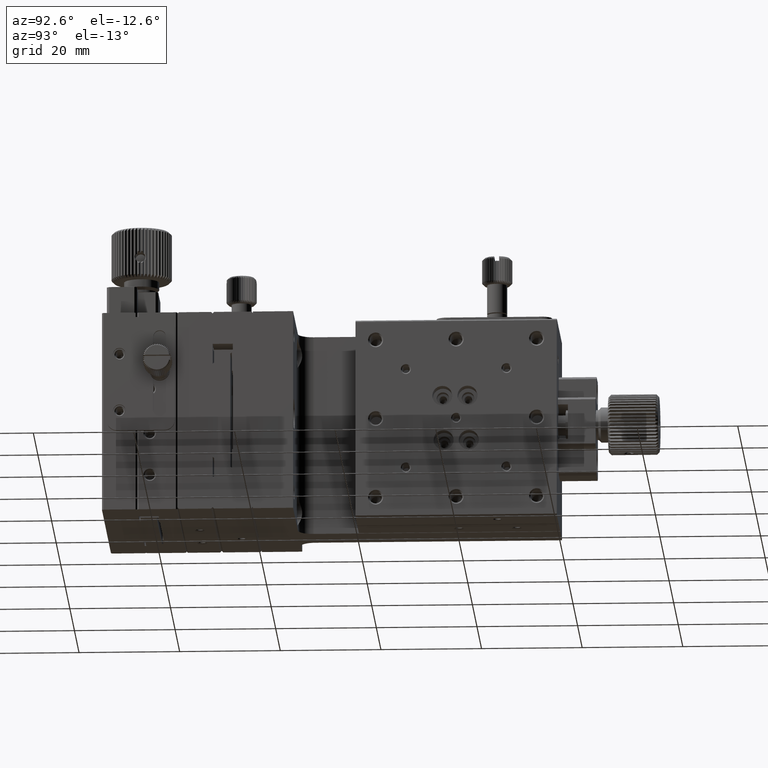
[diagram: clean part render]
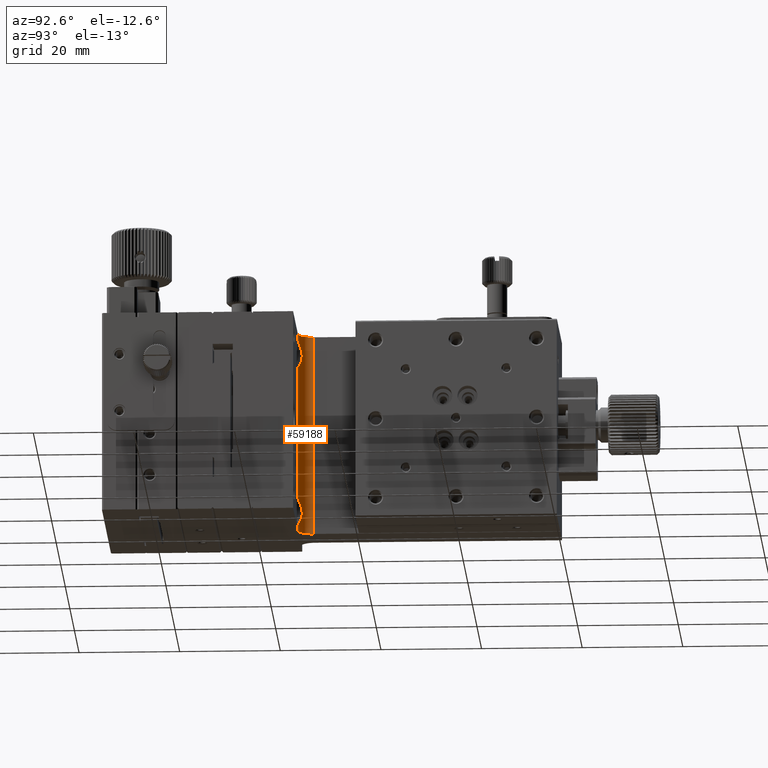
[diagram: same view with one face highlighted and labeled with its STEP entity id]
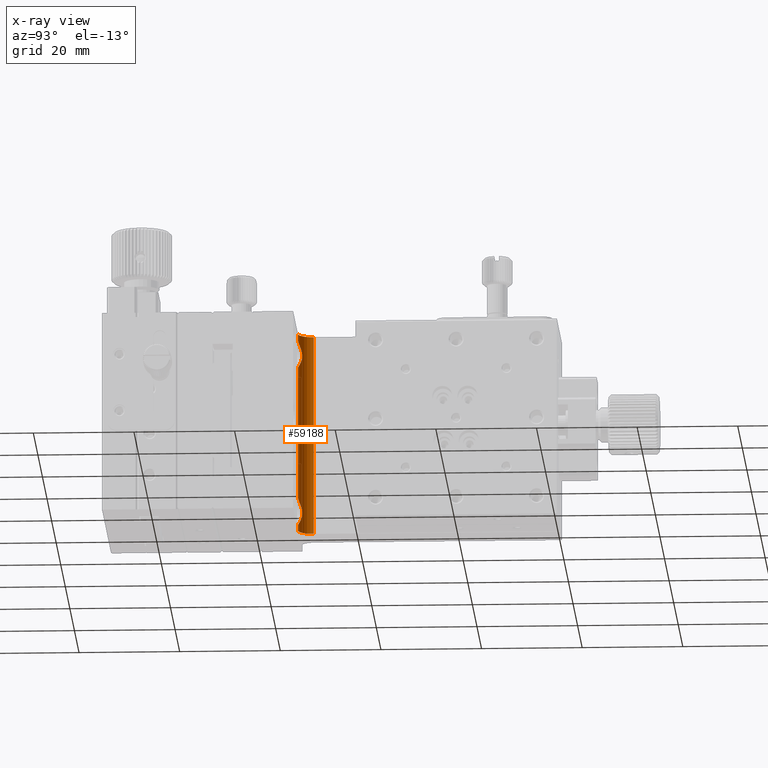
[diagram: x-ray of the same camera — body ghosted, the highlighted face saturated]
A machine part, auxiliary view. The second image highlights one B-rep face of the part: STEP entity #59188.
The next image is the same camera in x-ray: the body ghosted, the highlighted face saturated — about 0% of this face is hidden behind the body in this view.
In plain terms, the highlighted cylindrical surface (edge-blend (fillet) strip) has radius 3 mm, axis along (0, 0, 1).
Its self-contained STEP definition (entity closure, byte-faithful):
#1017 = CARTESIAN_POINT ( 'NONE',  ( 17.19185207732865450, 8.605386939612605701, -34.93336953761904340 ) ) ;
#1762 = CARTESIAN_POINT ( 'NONE',  ( 19.00000000000000000, 8.000000000000000000, -40.00000000000000000 ) ) ;
#1896 = CARTESIAN_POINT ( 'NONE',  ( 18.84970728491996894, 7.999999999999996447, -33.22470937425183024 ) ) ;
#3216 = VERTEX_POINT ( 'NONE', #24906 ) ;
#4471 = DIRECTION ( 'NONE',  ( 0.000000000000000000, 0.000000000000000000, 1.000000000000000000 ) ) ;
#5117 = VERTEX_POINT ( 'NONE', #18128 ) ;
#5275 = EDGE_CURVE ( 'NONE', #39582, #25499, #21660, .T. ) ;
#5700 = CARTESIAN_POINT ( 'NONE',  ( 18.05486831225842792, 8.149935395141318040, -1.710867294241118941 ) ) ;
#5982 = CARTESIAN_POINT ( 'NONE',  ( 18.70366764204015908, 8.011440006757496235, -1.290015167653405515 ) ) ;
#6072 = EDGE_CURVE ( 'NONE', #3216, #50620, #20082, .T. ) ;
#6146 = CARTESIAN_POINT ( 'NONE',  ( 18.70366764204017329, 8.011440006757498011, -33.29001516765340085 ) ) ;
#6448 = CARTESIAN_POINT ( 'NONE',  ( 17.09794559834611505, 8.679255665987703594, -36.77588799055331492 ) ) ;
#6887 = CARTESIAN_POINT ( 'NONE',  ( 18.84970728491995473, 7.999999999999996447, -1.224709374251824689 ) ) ;
#7195 = B_SPLINE_CURVE_WITH_KNOTS ( 'NONE', 3,
 ( #55860, #51313, #32480, #51009, #23070, #27917, #46482, #42802, #24544, #19695, #57360, #39433, #38546, #52781, #38245, #10865, #38840, #57941, #43093, #20582, #15719, #34244, #5700, #47372, #24253, #5982, #6887, #25440 ),
 .UNSPECIFIED., .F., .F.,
 ( 4, 2, 2, 2, 2, 2, 2, 2, 2, 2, 2, 2, 2, 4 ),
 ( 3.576224061345498009E-18, 0.0009401447641671217955, 0.001880289528334239905, 0.002820434292501358339, 0.003290506674584919074, 0.003760579056668479810, 0.004230651438752038376, 0.004700723820835597810, 0.005170796202919157245, 0.005640868585002715811, 0.006110940967086274378, 0.006581013349169832945, 0.007051085731253390644, 0.007521158113336949211 ),
 .UNSPECIFIED. ) ;
#7212 = VECTOR ( 'NONE', #47568, 1000.000000000000000 ) ;
#7563 = VERTEX_POINT ( 'NONE', #48822 ) ;
#9062 = CARTESIAN_POINT ( 'NONE',  ( 19.00000000000000000, 8.000000000000000000, -40.00000000000000000 ) ) ;
#10371 = EDGE_CURVE ( 'NONE', #39582, #41073, #48712, .T. ) ;
#10439 = CARTESIAN_POINT ( 'NONE',  ( 18.42871268474310753, 8.051621716432871168, -33.43961886689596952 ) ) ;
#10744 = CARTESIAN_POINT ( 'NONE',  ( 17.24071141241682881, 8.566984482498359199, -37.21738005019282269 ) ) ;
#10865 = CARTESIAN_POINT ( 'NONE',  ( 17.19185207732865450, 8.605386939612609254, -2.933369537619058498 ) ) ;
#11660 = DIRECTION ( 'NONE',  ( 1.000000000000000000, 0.000000000000000000, 0.000000000000000000 ) ) ;
#12247 = CARTESIAN_POINT ( 'NONE',  ( 19.00000000000000000, 8.000000000000000000, -40.00000000000000000 ) ) ;
#12352 = CARTESIAN_POINT ( 'NONE',  ( 16.00000000000000000, 11.00000000000000000, -40.00000000000000000 ) ) ;
#12551 = CYLINDRICAL_SURFACE ( 'NONE', #39688, 2.999999999999999112 ) ;
#12889 = ORIENTED_EDGE ( 'NONE', *, *, #15839, .F. ) ;
#13029 = ORIENTED_EDGE ( 'NONE', *, *, #5275, .F. ) ;
#14691 = CARTESIAN_POINT ( 'NONE',  ( 16.99998641230205720, 8.763944175706591011, -35.84223658976920746 ) ) ;
#14982 = CARTESIAN_POINT ( 'NONE',  ( 17.01237562666092629, 8.752693045605873579, -35.68615207019598046 ) ) ;
#15285 = CARTESIAN_POINT ( 'NONE',  ( 17.37552597993563097, 8.470054543796710078, -37.48430663253346040 ) ) ;
#15324 = DIRECTION ( 'NONE',  ( 1.000000000000000000, 0.000000000000000000, 0.000000000000000000 ) ) ;
#15719 = CARTESIAN_POINT ( 'NONE',  ( 17.73048646079679358, 8.279479781209726497, -2.032220151991990686 ) ) ;
#15839 = EDGE_CURVE ( 'NONE', #5117, #39819, #27292, .T. ) ;
#15935 = VECTOR ( 'NONE', #4471, 1000.000000000000000 ) ;
#16125 = VECTOR ( 'NONE', #21374, 1000.000000000000000 ) ;
#18128 = CARTESIAN_POINT ( 'NONE',  ( 19.00000000000000355, 8.000000000000000000, -33.17157287525380838 ) ) ;
#18745 = ORIENTED_EDGE ( 'NONE', *, *, #6072, .F. ) ;
#19376 = CARTESIAN_POINT ( 'NONE',  ( 19.00000000000000000, 8.000000000000000000, -40.00000000000000000 ) ) ;
#19440 = EDGE_CURVE ( 'NONE', #7563, #3216, #43421, .T. ) ;
#19563 = CARTESIAN_POINT ( 'NONE',  ( 17.73048646079679713, 8.279479781209726497, -34.03222015199200001 ) ) ;
#19695 = CARTESIAN_POINT ( 'NONE',  ( 17.01281069748860020, 8.752306015370145076, -4.317781867066538659 ) ) ;
#20082 = CIRCLE ( 'NONE', #42453, 2.999999999999999112 ) ;
#20157 = CARTESIAN_POINT ( 'NONE',  ( 17.24912044884800011, 8.562571854232894353, -34.79359931062496969 ) ) ;
#20353 = EDGE_LOOP ( 'NONE', ( #13029, #52208, #58680, #18745, #22446, #25509, #12889, #56513 ) ) ;
#20375 = EDGE_CURVE ( 'NONE', #39819, #7563, #7195, .T. ) ;
#20449 = CARTESIAN_POINT ( 'NONE',  ( 18.69913493667851867, 7.999999999999998224, -38.72205526149781463 ) ) ;
#20582 = CARTESIAN_POINT ( 'NONE',  ( 17.63519898629306937, 8.326594350190559268, -2.147904763027979946 ) ) ;
#21205 = EDGE_CURVE ( 'NONE', #25499, #5117, #41121, .T. ) ;
#21374 = DIRECTION ( 'NONE',  ( 0.000000000000000000, 0.000000000000000000, 1.000000000000000000 ) ) ;
#21585 = DIRECTION ( 'NONE',  ( -0.000000000000000000, -0.000000000000000000, -1.000000000000000000 ) ) ;
#21660 = LINE ( 'NONE', #12247, #16125 ) ;
#22446 = ORIENTED_EDGE ( 'NONE', *, *, #19440, .F. ) ;
#23070 = CARTESIAN_POINT ( 'NONE',  ( 17.72365042242730837, 8.277781858656844349, -5.977185540625937321 ) ) ;
#24253 = CARTESIAN_POINT ( 'NONE',  ( 18.42871268474309687, 8.051621716432869391, -1.439618866895969518 ) ) ;
#24415 = CARTESIAN_POINT ( 'NONE',  ( 17.46210129923305487, 8.422278688137950553, -34.39326082207188762 ) ) ;
#24544 = CARTESIAN_POINT ( 'NONE',  ( 17.06181432683357357, 8.709915750700565340, -4.625579886245046346 ) ) ;
#24906 = CARTESIAN_POINT ( 'NONE',  ( 19.00000000000000000, 8.000000000000000000, 0.000000000000000000 ) ) ;
#25018 = CARTESIAN_POINT ( 'NONE',  ( 17.06181432683357357, 8.709915750700565340, -36.62557988624503480 ) ) ;
#25440 = CARTESIAN_POINT ( 'NONE',  ( 19.00000000000000000, 8.000000000000000000, -1.171572875253810375 ) ) ;
#25499 = VERTEX_POINT ( 'NONE', #30985 ) ;
#25509 = ORIENTED_EDGE ( 'NONE', *, *, #20375, .F. ) ;
#27292 = LINE ( 'NONE', #9062, #15935 ) ;
#27917 = CARTESIAN_POINT ( 'NONE',  ( 17.37552597993563097, 8.470054543796711854, -5.484306632533454184 ) ) ;
#29553 = CARTESIAN_POINT ( 'NONE',  ( 19.00000000000000000, 8.000000000000000000, -38.82842712474619162 ) ) ;
#30482 = CARTESIAN_POINT ( 'NONE',  ( 19.00000000000000000, 11.00000000000000000, -40.00000000000000000 ) ) ;
#30985 = CARTESIAN_POINT ( 'NONE',  ( 19.00000000000000000, 8.000000000000000000, -38.82842712474619162 ) ) ;
#32480 = CARTESIAN_POINT ( 'NONE',  ( 18.42561627553536141, 8.044389185550452126, -6.572415704546958004 ) ) ;
#33533 = CARTESIAN_POINT ( 'NONE',  ( 18.29922425358108029, 8.080230229577596290, -33.52390878850868461 ) ) ;
#33827 = CARTESIAN_POINT ( 'NONE',  ( 17.38396565619781597, 8.471152798591475630, -34.52382072893628617 ) ) ;
#34120 = CARTESIAN_POINT ( 'NONE',  ( 19.00000000000000355, 8.000000000000000000, -33.17157287525380838 ) ) ;
#34244 = CARTESIAN_POINT ( 'NONE',  ( 17.93977806397517583, 8.191294900948356883, -1.814059742542077247 ) ) ;
#35567 = CARTESIAN_POINT ( 'NONE',  ( 16.00000000000000000, 11.00000000000000000, 0.000000000000000000 ) ) ;
#35635 = VECTOR ( 'NONE', #57970, 1000.000000000000000 ) ;
#38062 = AXIS2_PLACEMENT_3D ( 'NONE', #49254, #21585, #54114 ) ;
#38245 = CARTESIAN_POINT ( 'NONE',  ( 17.09793119445219034, 8.679287851068016479, -3.224505353500955795 ) ) ;
#38412 = CARTESIAN_POINT ( 'NONE',  ( 17.93308513327729159, 8.184463707108884378, -38.19633094104226245 ) ) ;
#38546 = CARTESIAN_POINT ( 'NONE',  ( 17.01237562666092629, 8.752693045605873579, -3.686152070195982233 ) ) ;
#38840 = CARTESIAN_POINT ( 'NONE',  ( 17.24912044884800366, 8.562571854232894353, -2.793599310624962584 ) ) ;
#39003 = CARTESIAN_POINT ( 'NONE',  ( 17.01281069748860375, 8.752306015370146852, -36.31778186706653599 ) ) ;
#39433 = CARTESIAN_POINT ( 'NONE',  ( 16.99998641230205720, 8.763944175706591011, -3.842236589769187471 ) ) ;
#39582 = VERTEX_POINT ( 'NONE', #19376 ) ;
#39688 = AXIS2_PLACEMENT_3D ( 'NONE', #30482, #39934, #11660 ) ;
#39819 = VERTEX_POINT ( 'NONE', #45485 ) ;
#39934 = DIRECTION ( 'NONE',  ( 0.000000000000000000, 0.000000000000000000, 1.000000000000000000 ) ) ;
#41073 = VERTEX_POINT ( 'NONE', #12352 ) ;
#41121 = B_SPLINE_CURVE_WITH_KNOTS ( 'NONE', 3,
 ( #29553, #20449, #52362, #38412, #48115, #15285, #10744, #6448, #25018, #39003, #47229, #14691, #14982, #42677, #52954, #1017, #20157, #33827, #24415, #57516, #19563, #43564, #52061, #33533, #10439, #6146, #1896, #34120 ),
 .UNSPECIFIED., .F., .F.,
 ( 4, 2, 2, 2, 2, 2, 2, 2, 2, 2, 2, 2, 2, 4 ),
 ( 3.469446951953614189E-18, 0.0009401447641671105198, 0.001880289528334217570, 0.002820434292501324512, 0.003290506674584886548, 0.003760579056668449018, 0.004230651438752011488, 0.004700723820835574392, 0.005170796202919137295, 0.005640868585002700199, 0.006110940967086262235, 0.006581013349169825138, 0.007051085731253388042, 0.007521158113336950078 ),
 .UNSPECIFIED. ) ;
#42107 = DIRECTION ( 'NONE',  ( -0.000000000000000000, -0.000000000000000000, -1.000000000000000000 ) ) ;
#42453 = AXIS2_PLACEMENT_3D ( 'NONE', #52098, #42107, #15324 ) ;
#42677 = CARTESIAN_POINT ( 'NONE',  ( 17.06112599086390347, 8.710500759236587953, -35.37756970057985484 ) ) ;
#42802 = CARTESIAN_POINT ( 'NONE',  ( 17.09794559834611860, 8.679255665987707147, -4.775887990553327356 ) ) ;
#43093 = CARTESIAN_POINT ( 'NONE',  ( 17.46210129923304777, 8.422278688137947000, -2.393260822071864968 ) ) ;
#43421 = LINE ( 'NONE', #1762, #35635 ) ;
#43564 = CARTESIAN_POINT ( 'NONE',  ( 17.93977806397518293, 8.191294900948358659, -33.81405974254208502 ) ) ;
#45485 = CARTESIAN_POINT ( 'NONE',  ( 19.00000000000000000, 8.000000000000000000, -6.828427124746188071 ) ) ;
#46482 = CARTESIAN_POINT ( 'NONE',  ( 17.24071141241683236, 8.566984482498357423, -5.217380050192819141 ) ) ;
#47229 = CARTESIAN_POINT ( 'NONE',  ( 17.00001360991518595, 8.763919849422126873, -36.15827975008129869 ) ) ;
#47272 = CARTESIAN_POINT ( 'NONE',  ( 16.00000000000000000, 11.00000000000000000, -40.00000000000000000 ) ) ;
#47372 = CARTESIAN_POINT ( 'NONE',  ( 18.29922425358108384, 8.080230229577598067, -1.523908788508690160 ) ) ;
#47568 = DIRECTION ( 'NONE',  ( 0.000000000000000000, 0.000000000000000000, -1.000000000000000000 ) ) ;
#48115 = CARTESIAN_POINT ( 'NONE',  ( 17.72365042242730482, 8.277781858656842573, -37.97718554062594620 ) ) ;
#48712 = CIRCLE ( 'NONE', #38062, 2.999999999999999112 ) ;
#48822 = CARTESIAN_POINT ( 'NONE',  ( 19.00000000000000000, 8.000000000000000000, -1.171572875253810375 ) ) ;
#49254 = CARTESIAN_POINT ( 'NONE',  ( 19.00000000000000000, 11.00000000000000000, -40.00000000000000000 ) ) ;
#50620 = VERTEX_POINT ( 'NONE', #35567 ) ;
#51009 = CARTESIAN_POINT ( 'NONE',  ( 17.93308513327728448, 8.184463707108886155, -6.196330941042267781 ) ) ;
#51313 = CARTESIAN_POINT ( 'NONE',  ( 18.69913493667851867, 8.000000000000000000, -6.722055261497818179 ) ) ;
#51519 = LINE ( 'NONE', #47272, #7212 ) ;
#52061 = CARTESIAN_POINT ( 'NONE',  ( 18.05486831225843147, 8.149935395141321592, -33.71086729424113315 ) ) ;
#52098 = CARTESIAN_POINT ( 'NONE',  ( 19.00000000000000000, 11.00000000000000000, 0.000000000000000000 ) ) ;
#52208 = ORIENTED_EDGE ( 'NONE', *, *, #10371, .T. ) ;
#52362 = CARTESIAN_POINT ( 'NONE',  ( 18.42561627553536496, 8.044389185550455679, -38.57241570454696955 ) ) ;
#52781 = CARTESIAN_POINT ( 'NONE',  ( 17.06112599086389991, 8.710500759236580848, -3.377569700579849510 ) ) ;
#52954 = CARTESIAN_POINT ( 'NONE',  ( 17.09793119445218679, 8.679287851068018256, -35.22450535350095890 ) ) ;
#54114 = DIRECTION ( 'NONE',  ( 1.000000000000000000, 0.000000000000000000, 0.000000000000000000 ) ) ;
#55646 = EDGE_CURVE ( 'NONE', #50620, #41073, #51519, .T. ) ;
#55860 = CARTESIAN_POINT ( 'NONE',  ( 19.00000000000000000, 8.000000000000000000, -6.828427124746188071 ) ) ;
#56513 = ORIENTED_EDGE ( 'NONE', *, *, #21205, .F. ) ;
#57360 = CARTESIAN_POINT ( 'NONE',  ( 17.00001360991518595, 8.763919849422126873, -4.158279750081295134 ) ) ;
#57516 = CARTESIAN_POINT ( 'NONE',  ( 17.63519898629308003, 8.326594350190562821, -34.14790476302798794 ) ) ;
#57838 = FACE_OUTER_BOUND ( 'NONE', #20353, .T. ) ;
#57941 = CARTESIAN_POINT ( 'NONE',  ( 17.38396565619781242, 8.471152798591472077, -2.523820728936264413 ) ) ;
#57970 = DIRECTION ( 'NONE',  ( 0.000000000000000000, 0.000000000000000000, 1.000000000000000000 ) ) ;
#58680 = ORIENTED_EDGE ( 'NONE', *, *, #55646, .F. ) ;
#59188 = ADVANCED_FACE ( 'NONE', ( #57838 ), #12551, .F. ) ;